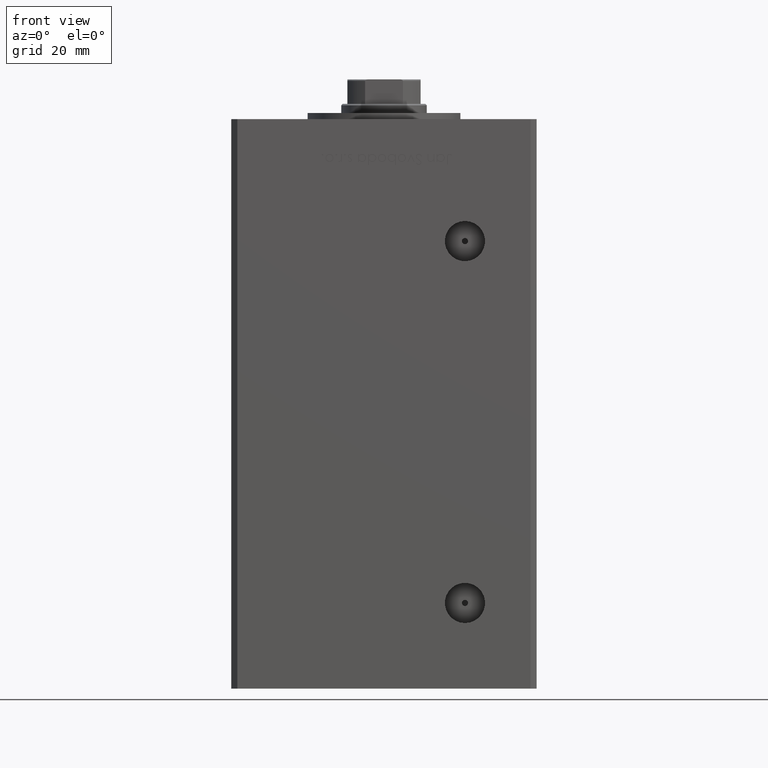
[diagram: clean part render]
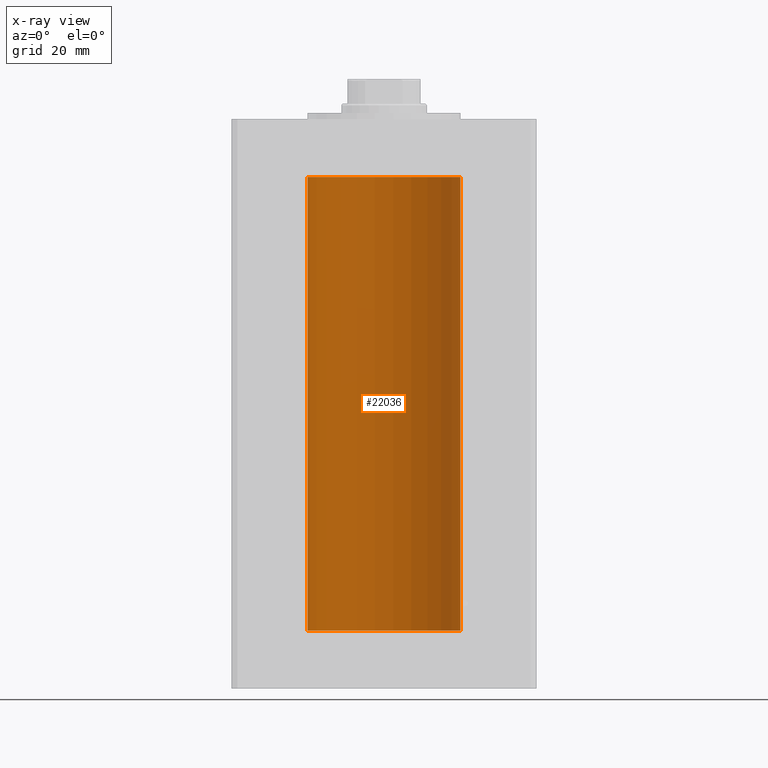
[diagram: x-ray — body ghosted, one internal face saturated and labeled with its STEP entity id]
A machine part, front view, then the same camera in x-ray: the body is ghosted and one INTERNAL B-rep face — a face not visible from any outside direction — is saturated and labeled: STEP entity #22036.
In plain terms, the highlighted cylindrical surface (partial cylindrical patch) has radius 25 mm, axis along (-0, -0, -1).
Its self-contained STEP definition (entity closure, byte-faithful):
#292 = CARTESIAN_POINT ( 'NONE',  ( -25.00000000000000000, 0.000000000000000000, 148.5000000000000000 ) ) ;
#2314 = EDGE_CURVE ( 'NONE', #39611, #47572, #50167, .T. ) ;
#2533 = CARTESIAN_POINT ( 'NONE',  ( 0.000000000000000000, 0.000000000000000000, 148.5000000000000000 ) ) ;
#3652 = AXIS2_PLACEMENT_3D ( 'NONE', #41524, #42040, #18287 ) ;
#7361 = CYLINDRICAL_SURFACE ( 'NONE', #49368, 25.00000000000000000 ) ;
#8187 = ORIENTED_EDGE ( 'NONE', *, *, #2314, .T. ) ;
#9166 = AXIS2_PLACEMENT_3D ( 'NONE', #2533, #47604, #22563 ) ;
#9789 = DIRECTION ( 'NONE',  ( -0.000000000000000000, -0.000000000000000000, -1.000000000000000000 ) ) ;
#11546 = CARTESIAN_POINT ( 'NONE',  ( -25.00000000000000000, 0.000000000000000000, 0.000000000000000000 ) ) ;
#13678 = EDGE_CURVE ( 'NONE', #49149, #47572, #30611, .T. ) ;
#16112 = ORIENTED_EDGE ( 'NONE', *, *, #32090, .F. ) ;
#18287 = DIRECTION ( 'NONE',  ( 1.000000000000000000, 0.000000000000000000, 0.000000000000000000 ) ) ;
#22036 = ADVANCED_FACE ( 'NONE', ( #22676 ), #7361, .F. ) ;
#22190 = CARTESIAN_POINT ( 'NONE',  ( -25.00000000000000000, 0.000000000000000000, 148.5000000000000000 ) ) ;
#22563 = DIRECTION ( 'NONE',  ( 1.000000000000000000, 0.000000000000000000, 0.000000000000000000 ) ) ;
#22676 = FACE_OUTER_BOUND ( 'NONE', #50514, .T. ) ;
#27903 = CARTESIAN_POINT ( 'NONE',  ( 25.00000000000000000, 3.061616997868383043E-15, 148.5000000000000000 ) ) ;
#30611 = CIRCLE ( 'NONE', #3652, 25.00000000000000000 ) ;
#32090 = EDGE_CURVE ( 'NONE', #34300, #49149, #50210, .T. ) ;
#32737 = CIRCLE ( 'NONE', #9166, 25.00000000000000000 ) ;
#33590 = CARTESIAN_POINT ( 'NONE',  ( 25.00000000000000000, 3.061616997868383043E-15, 148.5000000000000000 ) ) ;
#33797 = EDGE_CURVE ( 'NONE', #34300, #39611, #32737, .T. ) ;
#34300 = VERTEX_POINT ( 'NONE', #27903 ) ;
#34815 = DIRECTION ( 'NONE',  ( -0.000000000000000000, -0.000000000000000000, -1.000000000000000000 ) ) ;
#36489 = CARTESIAN_POINT ( 'NONE',  ( 25.00000000000000000, 3.061616997868383043E-15, 0.000000000000000000 ) ) ;
#39611 = VERTEX_POINT ( 'NONE', #292 ) ;
#41103 = VECTOR ( 'NONE', #49683, 1000.000000000000000 ) ;
#41524 = CARTESIAN_POINT ( 'NONE',  ( 0.000000000000000000, 0.000000000000000000, 0.000000000000000000 ) ) ;
#42040 = DIRECTION ( 'NONE',  ( -0.000000000000000000, 0.000000000000000000, 1.000000000000000000 ) ) ;
#43238 = CARTESIAN_POINT ( 'NONE',  ( 0.000000000000000000, 0.000000000000000000, 148.5000000000000000 ) ) ;
#44395 = ORIENTED_EDGE ( 'NONE', *, *, #13678, .F. ) ;
#45560 = ORIENTED_EDGE ( 'NONE', *, *, #33797, .T. ) ;
#46942 = DIRECTION ( 'NONE',  ( -1.000000000000000000, 0.000000000000000000, 0.000000000000000000 ) ) ;
#47572 = VERTEX_POINT ( 'NONE', #11546 ) ;
#47604 = DIRECTION ( 'NONE',  ( -0.000000000000000000, 0.000000000000000000, 1.000000000000000000 ) ) ;
#49149 = VERTEX_POINT ( 'NONE', #36489 ) ;
#49368 = AXIS2_PLACEMENT_3D ( 'NONE', #43238, #34815, #46942 ) ;
#49683 = DIRECTION ( 'NONE',  ( -0.000000000000000000, -0.000000000000000000, -1.000000000000000000 ) ) ;
#50167 = LINE ( 'NONE', #22190, #52103 ) ;
#50210 = LINE ( 'NONE', #33590, #41103 ) ;
#50514 = EDGE_LOOP ( 'NONE', ( #16112, #45560, #8187, #44395 ) ) ;
#52103 = VECTOR ( 'NONE', #9789, 1000.000000000000000 ) ;